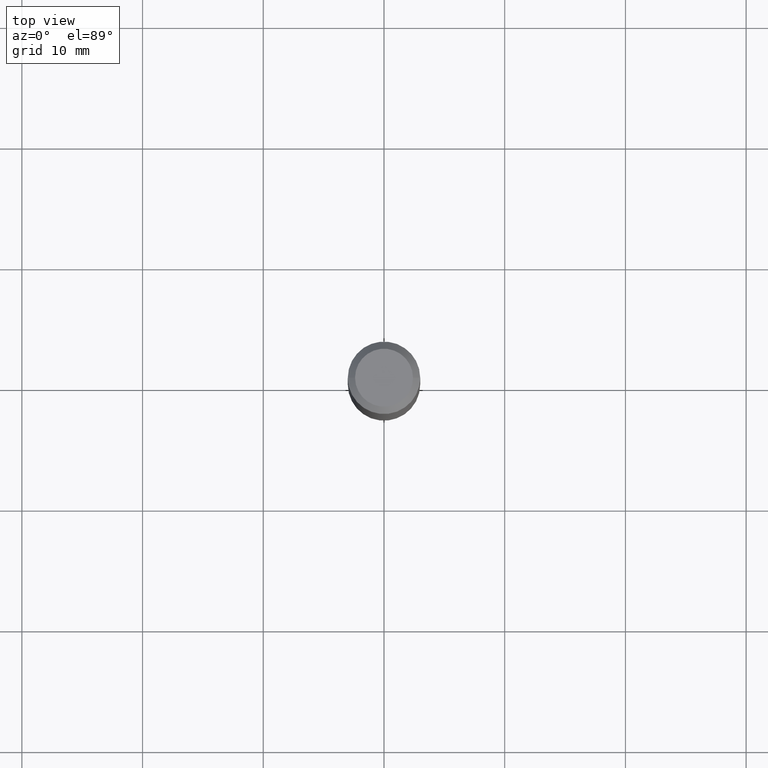
[diagram: clean part render]
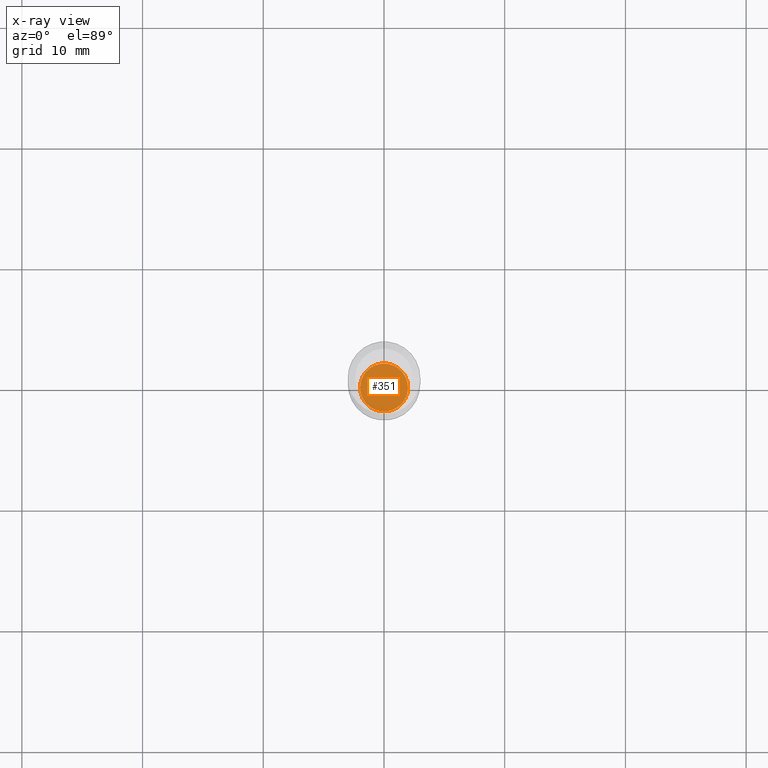
[diagram: x-ray — body ghosted, one internal face saturated and labeled with its STEP entity id]
A machine part, top view, then the same camera in x-ray: the body is ghosted and one INTERNAL B-rep face — a face not visible from any outside direction — is saturated and labeled: STEP entity #351.
In plain terms, the highlighted planar face has unit normal (-0, 0, 1).
Its self-contained STEP definition (entity closure, byte-faithful):
#13 = FACE_OUTER_BOUND ( 'NONE', #228, .T. ) ;
#21 = EDGE_CURVE ( 'NONE', #198, #100, #358, .T. ) ;
#49 = CARTESIAN_POINT ( 'NONE',  ( 4.534388260428479994E-29, -6.473904698482961003E-15, -1.854200000000000070 ) ) ;
#100 = VERTEX_POINT ( 'NONE', #389 ) ;
#132 = PLANE ( 'NONE',  #333 ) ;
#143 = ORIENTED_EDGE ( 'NONE', *, *, #21, .F. ) ;
#150 = AXIS2_PLACEMENT_3D ( 'NONE', #174, #223, #409 ) ;
#174 = CARTESIAN_POINT ( 'NONE',  ( 4.534388260428479994E-29, -6.473904698482961003E-15, -1.854200000000000070 ) ) ;
#198 = VERTEX_POINT ( 'NONE', #428 ) ;
#223 = DIRECTION ( 'NONE',  ( -2.445468806185136597E-29, 3.491481338843145583E-15, 1.000000000000000000 ) ) ;
#228 = EDGE_LOOP ( 'NONE', ( #331, #143 ) ) ;
#243 = DIRECTION ( 'NONE',  ( 1.000000000000000000, -6.982962677686267499E-15, 0.000000000000000000 ) ) ;
#248 = DIRECTION ( 'NONE',  ( 1.000000000000000000, -6.982962677686265922E-15, 4.876176775795935793E-29 ) ) ;
#251 = CIRCLE ( 'NONE', #150, 0.07825000000000000011 ) ;
#290 = AXIS2_PLACEMENT_3D ( 'NONE', #396, #318, #243 ) ;
#318 = DIRECTION ( 'NONE',  ( -2.445468806185136597E-29, 3.491481338843145583E-15, 1.000000000000000000 ) ) ;
#320 = DIRECTION ( 'NONE',  ( -2.438088387897960049E-29, 3.491481338843145188E-15, 1.000000000000000000 ) ) ;
#331 = ORIENTED_EDGE ( 'NONE', *, *, #517, .F. ) ;
#333 = AXIS2_PLACEMENT_3D ( 'NONE', #49, #320, #248 ) ;
#351 = ADVANCED_FACE ( 'NONE', ( #13 ), #132, .F. ) ;
#358 = CIRCLE ( 'NONE', #290, 0.07825000000000000011 ) ;
#389 = CARTESIAN_POINT ( 'NONE',  ( 0.07825000000000000011, -7.020321528011911342E-15, -1.854200000000000070 ) ) ;
#396 = CARTESIAN_POINT ( 'NONE',  ( 4.534388260428479994E-29, -6.473904698482961003E-15, -1.854200000000000070 ) ) ;
#409 = DIRECTION ( 'NONE',  ( 1.000000000000000000, -6.982962677686267499E-15, 0.000000000000000000 ) ) ;
#428 = CARTESIAN_POINT ( 'NONE',  ( -0.07825000000000000011, -5.915255780576571899E-15, -1.854200000000000070 ) ) ;
#517 = EDGE_CURVE ( 'NONE', #100, #198, #251, .T. ) ;